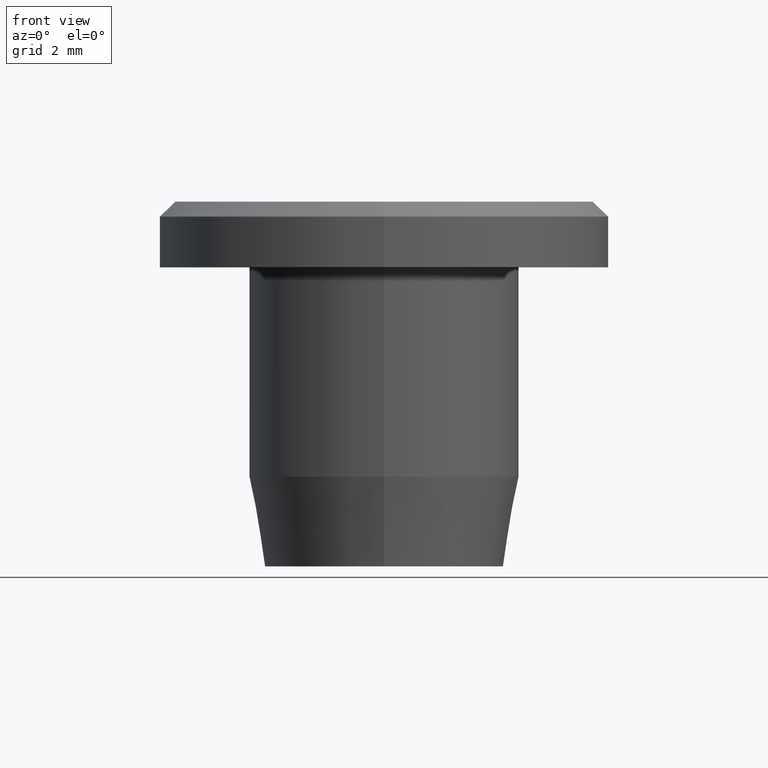
[diagram: clean part render]
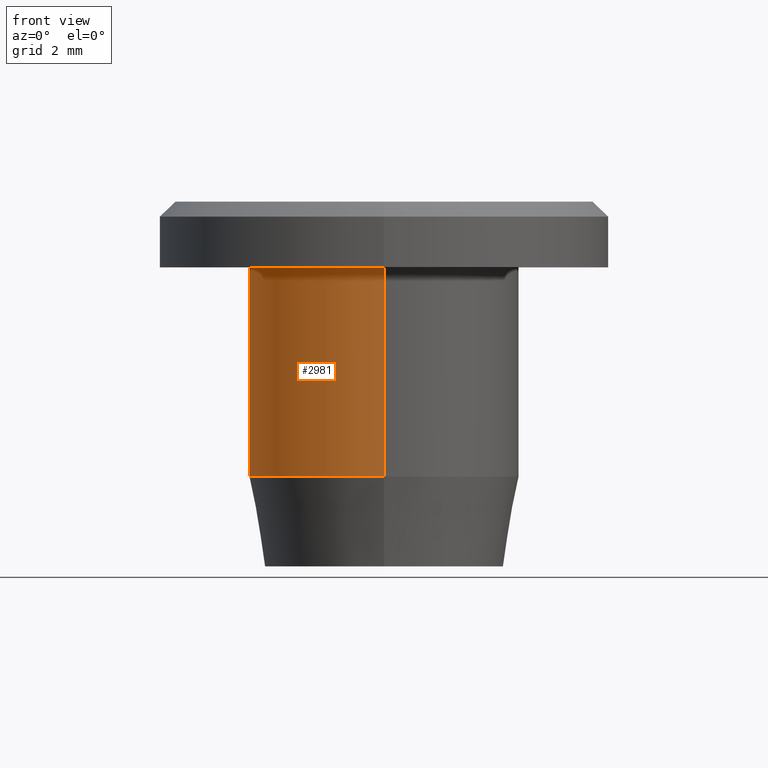
[diagram: same view with one face highlighted and labeled with its STEP entity id]
A machine part, front view. The second image highlights one B-rep face of the part: STEP entity #2981.
In plain terms, the highlighted cylindrical surface (partial cylindrical patch) has radius 4.5 mm, axis along (-0, 0, -1).
Its self-contained STEP definition (entity closure, byte-faithful):
#666 = VECTOR ( 'NONE', #3274, 1000.000000000000000 ) ;
#844 = CARTESIAN_POINT ( 'NONE',  ( 5.510910596163100400E-016, -4.500000000000008000, 3.899999999999997200 ) ) ;
#893 = DIRECTION ( 'NONE',  ( 0.0000000000000000000, 1.000000000000000000, 3.854941057726231700E-016 ) ) ;
#1059 = CARTESIAN_POINT ( 'NONE',  ( 0.0000000000000000000, 4.500000000000007100, -3.099999999999806000 ) ) ;
#1607 = CARTESIAN_POINT ( 'NONE',  ( 0.0000000000000000000, 1.933831969821484500E-015, -3.099999999999807800 ) ) ;
#1862 = AXIS2_PLACEMENT_3D ( 'NONE', #6153, #9946, #893 ) ;
#2013 = EDGE_CURVE ( 'NONE', #6534, #4172, #11989, .T. ) ;
#2981 = ADVANCED_FACE ( 'NONE', ( #11139 ), #12935, .T. ) ;
#3274 = DIRECTION ( 'NONE',  ( -0.0000000000000000000, 3.466407542334334500E-016, -1.000000000000000000 ) ) ;
#4172 = VERTEX_POINT ( 'NONE', #5040 ) ;
#4626 = EDGE_CURVE ( 'NONE', #11264, #9561, #7259, .T. ) ;
#5040 = CARTESIAN_POINT ( 'NONE',  ( 5.510910596163096500E-016, -4.500000000000003600, -3.099999999999809600 ) ) ;
#5203 = CARTESIAN_POINT ( 'NONE',  ( 5.510910596163096500E-016, -4.500000000000003600, -6.100000000000003200 ) ) ;
#5259 = DIRECTION ( 'NONE',  ( 0.0000000000000000000, -3.466407542334335000E-016, 1.000000000000000000 ) ) ;
#6153 = CARTESIAN_POINT ( 'NONE',  ( 0.0000000000000000000, -4.926533098124824600E-016, 3.899999999999999000 ) ) ;
#6446 = DIRECTION ( 'NONE',  ( -0.0000000000000000000, 3.466407542334334500E-016, -1.000000000000000000 ) ) ;
#6534 = VERTEX_POINT ( 'NONE', #1059 ) ;
#7255 = EDGE_CURVE ( 'NONE', #9561, #6534, #8012, .T. ) ;
#7259 = CIRCLE ( 'NONE', #1862, 4.500000000000007100 ) ;
#7288 = ORIENTED_EDGE ( 'NONE', *, *, #4626, .T. ) ;
#7702 = AXIS2_PLACEMENT_3D ( 'NONE', #1607, #5259, #15450 ) ;
#8012 = LINE ( 'NONE', #9016, #666 ) ;
#8265 = ORIENTED_EDGE ( 'NONE', *, *, #2013, .T. ) ;
#9016 = CARTESIAN_POINT ( 'NONE',  ( 0.0000000000000000000, 4.500000000000008000, -6.099999999999999600 ) ) ;
#9561 = VERTEX_POINT ( 'NONE', #13792 ) ;
#9592 = ORIENTED_EDGE ( 'NONE', *, *, #15680, .F. ) ;
#9946 = DIRECTION ( 'NONE',  ( -0.0000000000000000000, 3.466407542334334500E-016, -1.000000000000000000 ) ) ;
#10397 = LINE ( 'NONE', #5203, #11201 ) ;
#10403 = DIRECTION ( 'NONE',  ( 0.0000000000000000000, 1.000000000000000000, 3.854941057726233700E-016 ) ) ;
#11139 = FACE_OUTER_BOUND ( 'NONE', #12424, .T. ) ;
#11201 = VECTOR ( 'NONE', #14120, 1000.000000000000000 ) ;
#11264 = VERTEX_POINT ( 'NONE', #844 ) ;
#11989 = CIRCLE ( 'NONE', #7702, 4.500000000000005300 ) ;
#12424 = EDGE_LOOP ( 'NONE', ( #9592, #7288, #12623, #8265 ) ) ;
#12623 = ORIENTED_EDGE ( 'NONE', *, *, #7255, .T. ) ;
#12935 = CYLINDRICAL_SURFACE ( 'NONE', #13894, 4.500000000000005300 ) ;
#13792 = CARTESIAN_POINT ( 'NONE',  ( 0.0000000000000000000, 4.500000000000006200, 3.900000000000000800 ) ) ;
#13894 = AXIS2_PLACEMENT_3D ( 'NONE', #15466, #6446, #10403 ) ;
#14120 = DIRECTION ( 'NONE',  ( -0.0000000000000000000, 3.466407542334334500E-016, -1.000000000000000000 ) ) ;
#15450 = DIRECTION ( 'NONE',  ( 0.0000000000000000000, 1.000000000000000000, 3.854941057726233700E-016 ) ) ;
#15466 = CARTESIAN_POINT ( 'NONE',  ( 0.0000000000000000000, 2.973754232521852100E-015, -6.100000000000001400 ) ) ;
#15680 = EDGE_CURVE ( 'NONE', #11264, #4172, #10397, .T. ) ;